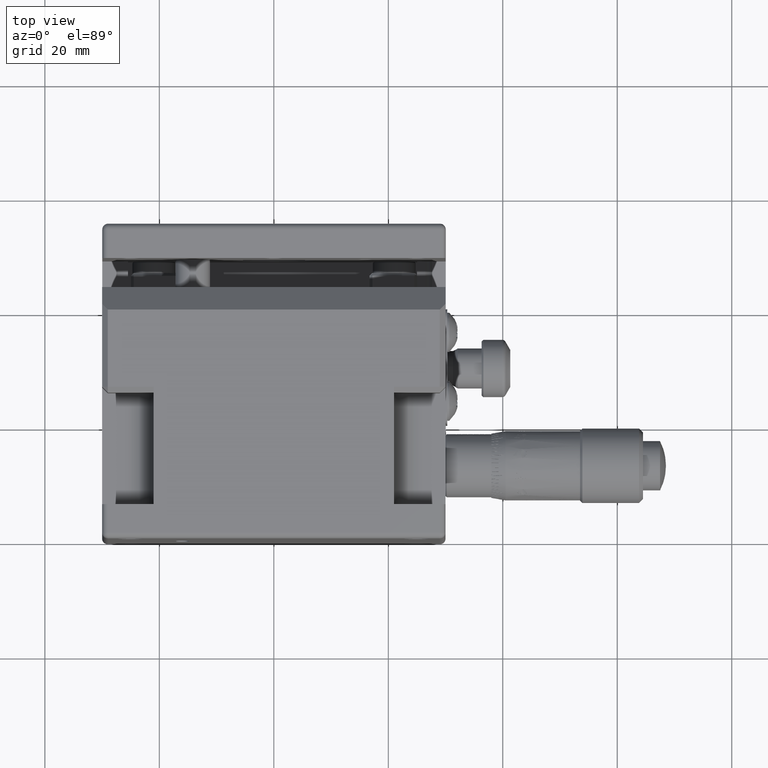
[diagram: clean part render]
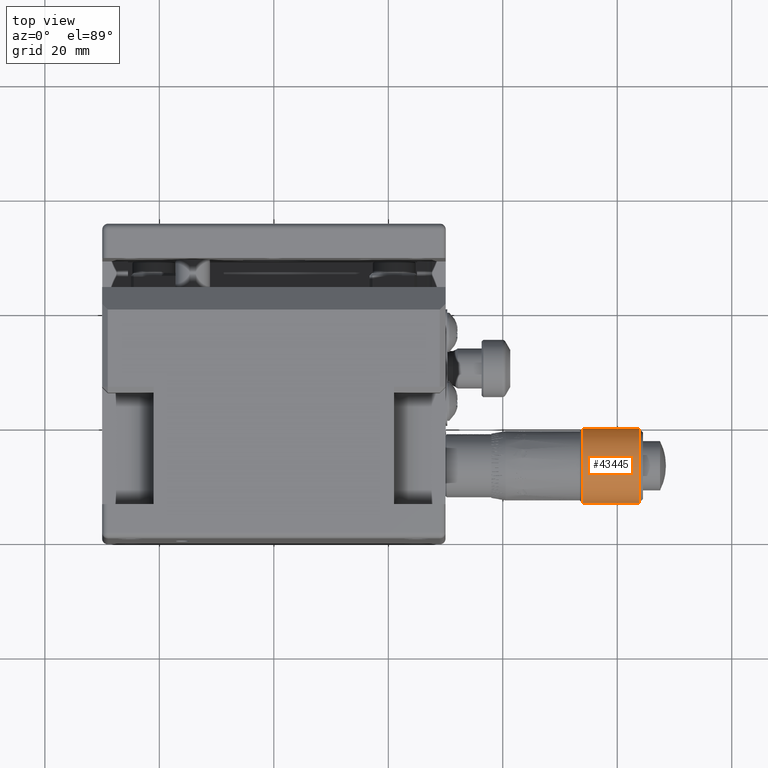
[diagram: same view with one face highlighted and labeled with its STEP entity id]
A machine part, top view. The second image highlights one B-rep face of the part: STEP entity #43445.
In plain terms, the highlighted cylindrical surface (partial cylindrical patch) has radius 6.5 mm, axis along (1, -0, 0).
Its self-contained STEP definition (entity closure, byte-faithful):
#904 = ORIENTED_EDGE ( 'NONE', *, *, #51460, .T. ) ;
#2387 = CARTESIAN_POINT ( 'NONE',  ( 53.90000000000000568, 6.499998999999929694, 12.00000000000000000 ) ) ;
#2631 = VERTEX_POINT ( 'NONE', #34976 ) ;
#3235 = ORIENTED_EDGE ( 'NONE', *, *, #50145, .T. ) ;
#9288 = DIRECTION ( 'NONE',  ( -1.000000000000000000, 9.863214973842508633E-47, -5.279631684491799764E-32 ) ) ;
#12348 = EDGE_CURVE ( 'NONE', #2631, #50533, #25588, .T. ) ;
#16880 = CIRCLE ( 'NONE', #48286, 6.500001000000110274 ) ;
#17044 = VERTEX_POINT ( 'NONE', #2387 ) ;
#17399 = AXIS2_PLACEMENT_3D ( 'NONE', #52895, #52595, #27225 ) ;
#20640 = CARTESIAN_POINT ( 'NONE',  ( 63.79999999999999716, 6.499998999999929694, 12.00000000000000000 ) ) ;
#20981 = FACE_OUTER_BOUND ( 'NONE', #45025, .T. ) ;
#21717 = CARTESIAN_POINT ( 'NONE',  ( 68.50000000000000000, 19.50000100000010050, 12.00000000000000000 ) ) ;
#23837 = VECTOR ( 'NONE', #29499, 1000.000000000000000 ) ;
#25158 = CYLINDRICAL_SURFACE ( 'NONE', #17399, 6.500001000000111162 ) ;
#25339 = CIRCLE ( 'NONE', #32967, 6.500001000000111162 ) ;
#25420 = DIRECTION ( 'NONE',  ( 1.000000000000000000, -9.863214973842508633E-47, 5.279631684491799764E-32 ) ) ;
#25588 = LINE ( 'NONE', #21717, #51931 ) ;
#27080 = EDGE_CURVE ( 'NONE', #17044, #49785, #34882, .T. ) ;
#27225 = DIRECTION ( 'NONE',  ( 0.000000000000000000, 1.000000000000000000, 1.868163455949843886E-15 ) ) ;
#29499 = DIRECTION ( 'NONE',  ( 1.000000000000000000, -2.826107998032429786E-17, 4.930380657631309552E-32 ) ) ;
#32881 = ORIENTED_EDGE ( 'NONE', *, *, #27080, .T. ) ;
#32967 = AXIS2_PLACEMENT_3D ( 'NONE', #50146, #9288, #37018 ) ;
#34372 = CARTESIAN_POINT ( 'NONE',  ( 53.90000000000000568, 13.00000000000000000, 12.00000000000000000 ) ) ;
#34882 = LINE ( 'NONE', #51887, #23837 ) ;
#34970 = DIRECTION ( 'NONE',  ( 0.000000000000000000, -1.000000000000000000, -1.868163455949844281E-15 ) ) ;
#34976 = CARTESIAN_POINT ( 'NONE',  ( 53.90000000000000568, 19.50000100000004721, 12.00000000000000000 ) ) ;
#37018 = DIRECTION ( 'NONE',  ( 0.000000000000000000, 1.000000000000000000, 1.868163455949843886E-15 ) ) ;
#43445 = ADVANCED_FACE ( 'NONE', ( #20981 ), #25158, .T. ) ;
#45025 = EDGE_LOOP ( 'NONE', ( #904, #32881, #3235, #58153 ) ) ;
#48286 = AXIS2_PLACEMENT_3D ( 'NONE', #34372, #25420, #34970 ) ;
#49785 = VERTEX_POINT ( 'NONE', #20640 ) ;
#50145 = EDGE_CURVE ( 'NONE', #49785, #50533, #25339, .T. ) ;
#50146 = CARTESIAN_POINT ( 'NONE',  ( 63.79999999999999716, 13.00000000000000000, 12.00000000000000000 ) ) ;
#50533 = VERTEX_POINT ( 'NONE', #56751 ) ;
#51460 = EDGE_CURVE ( 'NONE', #2631, #17044, #16880, .T. ) ;
#51887 = CARTESIAN_POINT ( 'NONE',  ( 68.50000000000000000, 6.499998999999870186, 12.00000000000000000 ) ) ;
#51931 = VECTOR ( 'NONE', #58685, 1000.000000000000000 ) ;
#52595 = DIRECTION ( 'NONE',  ( 1.000000000000000000, -1.907397194235119761E-46, 1.021001234212305896E-31 ) ) ;
#52895 = CARTESIAN_POINT ( 'NONE',  ( 68.50000000000000000, 13.00000000000000000, 12.00000000000000000 ) ) ;
#56751 = CARTESIAN_POINT ( 'NONE',  ( 63.79999999999999716, 19.50000100000010050, 12.00000000000000000 ) ) ;
#58153 = ORIENTED_EDGE ( 'NONE', *, *, #12348, .F. ) ;
#58685 = DIRECTION ( 'NONE',  ( 1.000000000000000000, -2.826107998032429786E-17, 4.930380657631309552E-32 ) ) ;